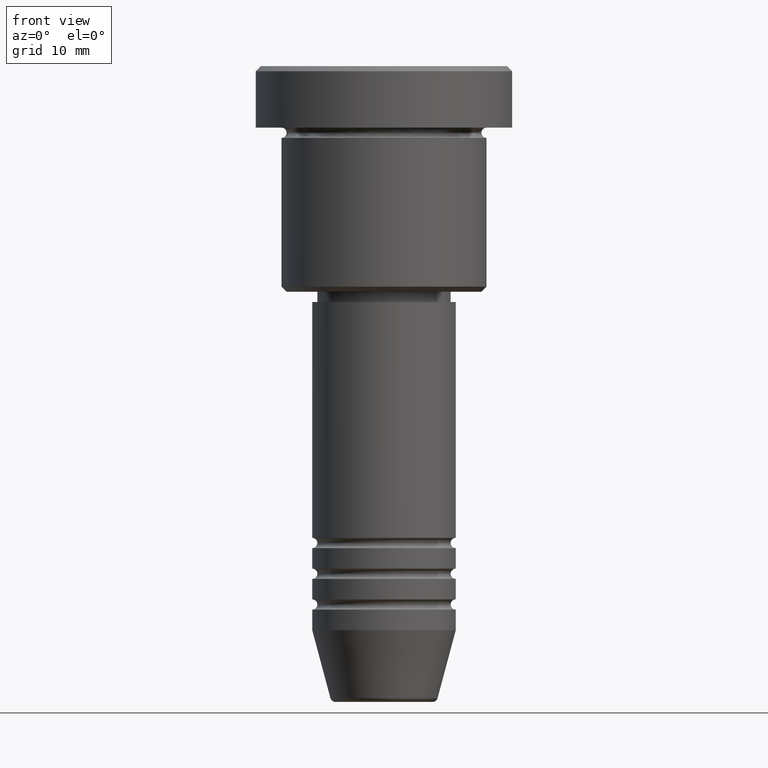
[diagram: clean part render]
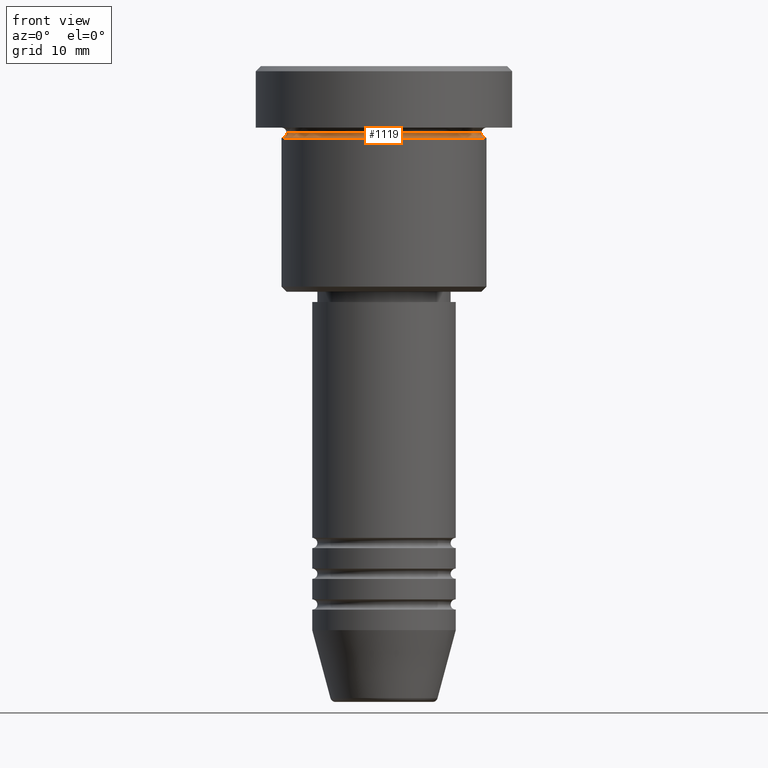
[diagram: same view with one face highlighted and labeled with its STEP entity id]
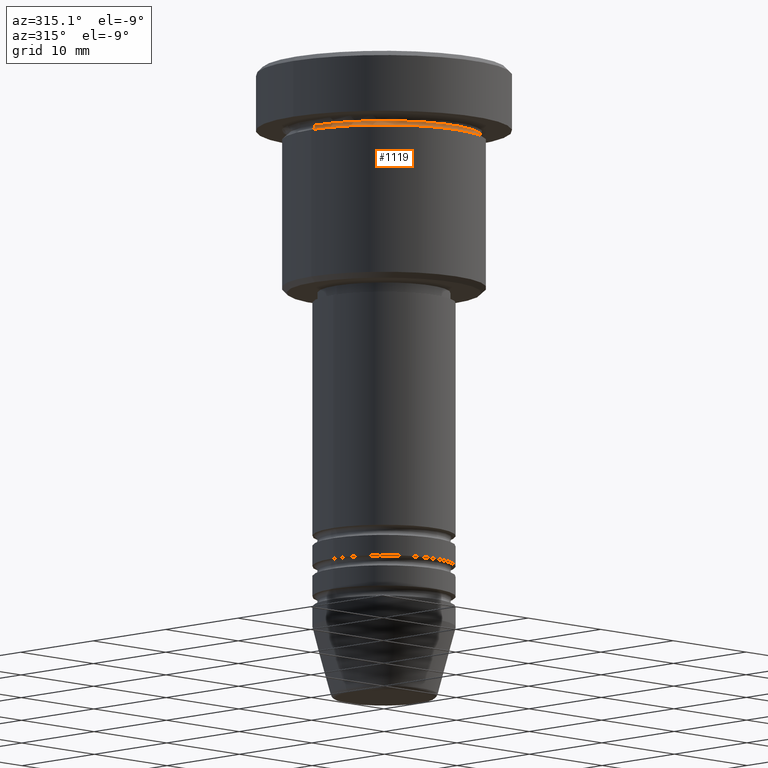
[diagram: same view with one face highlighted and labeled with its STEP entity id]
A machine part, front view. The second image highlights one B-rep face of the part: STEP entity #1119.
A second angle (auxiliary view) of the same face is appended — the face is thin or edge-on in the first view.
In plain terms, the highlighted toroidal blend (fillet) surface has major radius 10 mm and minor (blend) radius 0.5 mm.
Its self-contained STEP definition (entity closure, byte-faithful):
#14 = CARTESIAN_POINT ( 'NONE',  ( 9.500000000000000000, 0.000000000000000000, -6.499999999999997335 ) ) ;
#43 = DIRECTION ( 'NONE',  ( 1.224646799147353207E-16, 1.000000000000000000, 0.000000000000000000 ) ) ;
#56 = DIRECTION ( 'NONE',  ( 0.000000000000000000, 0.000000000000000000, -1.000000000000000000 ) ) ;
#86 = DIRECTION ( 'NONE',  ( -0.000000000000000000, -0.000000000000000000, 1.000000000000000000 ) ) ;
#92 = VERTEX_POINT ( 'NONE', #616 ) ;
#107 = EDGE_CURVE ( 'NONE', #92, #1133, #817, .T. ) ;
#140 = CARTESIAN_POINT ( 'NONE',  ( 0.000000000000000000, 0.000000000000000000, -6.999999999999996447 ) ) ;
#288 = EDGE_CURVE ( 'NONE', #643, #92, #1145, .T. ) ;
#305 = ORIENTED_EDGE ( 'NONE', *, *, #107, .T. ) ;
#329 = AXIS2_PLACEMENT_3D ( 'NONE', #622, #86, #1090 ) ;
#372 = EDGE_CURVE ( 'NONE', #1178, #1133, #1103, .T. ) ;
#421 = ORIENTED_EDGE ( 'NONE', *, *, #1014, .F. ) ;
#443 = DIRECTION ( 'NONE',  ( -0.000000000000000000, -0.000000000000000000, 1.000000000000000000 ) ) ;
#497 = CIRCLE ( 'NONE', #329, 9.500000000000000000 ) ;
#515 = CARTESIAN_POINT ( 'NONE',  ( 10.00000000000000000, 0.000000000000000000, -6.499999999999997335 ) ) ;
#580 = ORIENTED_EDGE ( 'NONE', *, *, #288, .T. ) ;
#585 = TOROIDAL_SURFACE ( 'NONE', #927, 10.00000000000000000, 0.5000000000000000000 ) ;
#614 = AXIS2_PLACEMENT_3D ( 'NONE', #140, #443, #858 ) ;
#616 = CARTESIAN_POINT ( 'NONE',  ( -10.00000000000000000, 1.224646799147353256E-15, -6.999999999999996447 ) ) ;
#622 = CARTESIAN_POINT ( 'NONE',  ( 0.000000000000000000, 0.000000000000000000, -6.499999999999997335 ) ) ;
#643 = VERTEX_POINT ( 'NONE', #1022 ) ;
#722 = CARTESIAN_POINT ( 'NONE',  ( 0.000000000000000000, 0.000000000000000000, -6.499999999999997335 ) ) ;
#755 = DIRECTION ( 'NONE',  ( -1.000000000000000000, 1.224646799147353454E-16, 0.000000000000000000 ) ) ;
#780 = AXIS2_PLACEMENT_3D ( 'NONE', #1134, #43, #755 ) ;
#808 = CARTESIAN_POINT ( 'NONE',  ( 10.00000000000000000, 0.000000000000000000, -6.999999999999996447 ) ) ;
#817 = CIRCLE ( 'NONE', #614, 10.00000000000000000 ) ;
#858 = DIRECTION ( 'NONE',  ( 1.000000000000000000, 0.000000000000000000, 0.000000000000000000 ) ) ;
#868 = DIRECTION ( 'NONE',  ( 0.000000000000000000, -1.000000000000000000, 0.000000000000000000 ) ) ;
#899 = DIRECTION ( 'NONE',  ( -0.000000000000000000, -0.000000000000000000, 1.000000000000000000 ) ) ;
#927 = AXIS2_PLACEMENT_3D ( 'NONE', #722, #899, #1069 ) ;
#949 = AXIS2_PLACEMENT_3D ( 'NONE', #515, #868, #56 ) ;
#980 = FACE_OUTER_BOUND ( 'NONE', #1124, .T. ) ;
#1014 = EDGE_CURVE ( 'NONE', #643, #1178, #497, .T. ) ;
#1022 = CARTESIAN_POINT ( 'NONE',  ( -9.500000000000000000, 1.194030629168669469E-15, -6.499999999999997335 ) ) ;
#1069 = DIRECTION ( 'NONE',  ( 1.000000000000000000, 0.000000000000000000, 0.000000000000000000 ) ) ;
#1090 = DIRECTION ( 'NONE',  ( 1.000000000000000000, 0.000000000000000000, 0.000000000000000000 ) ) ;
#1103 = CIRCLE ( 'NONE', #949, 0.5000000000000004441 ) ;
#1119 = ADVANCED_FACE ( 'NONE', ( #980 ), #585, .F. ) ;
#1124 = EDGE_LOOP ( 'NONE', ( #421, #580, #305, #1144 ) ) ;
#1133 = VERTEX_POINT ( 'NONE', #808 ) ;
#1134 = CARTESIAN_POINT ( 'NONE',  ( -10.00000000000000000, 1.224646799147353256E-15, -6.499999999999997335 ) ) ;
#1144 = ORIENTED_EDGE ( 'NONE', *, *, #372, .F. ) ;
#1145 = CIRCLE ( 'NONE', #780, 0.5000000000000004441 ) ;
#1178 = VERTEX_POINT ( 'NONE', #14 ) ;